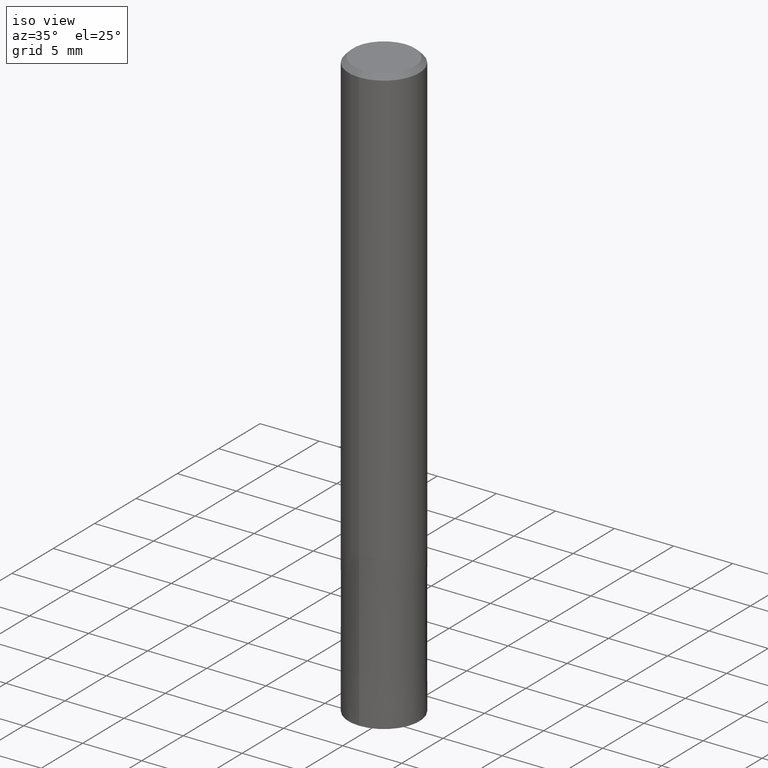
[diagram: clean part render]
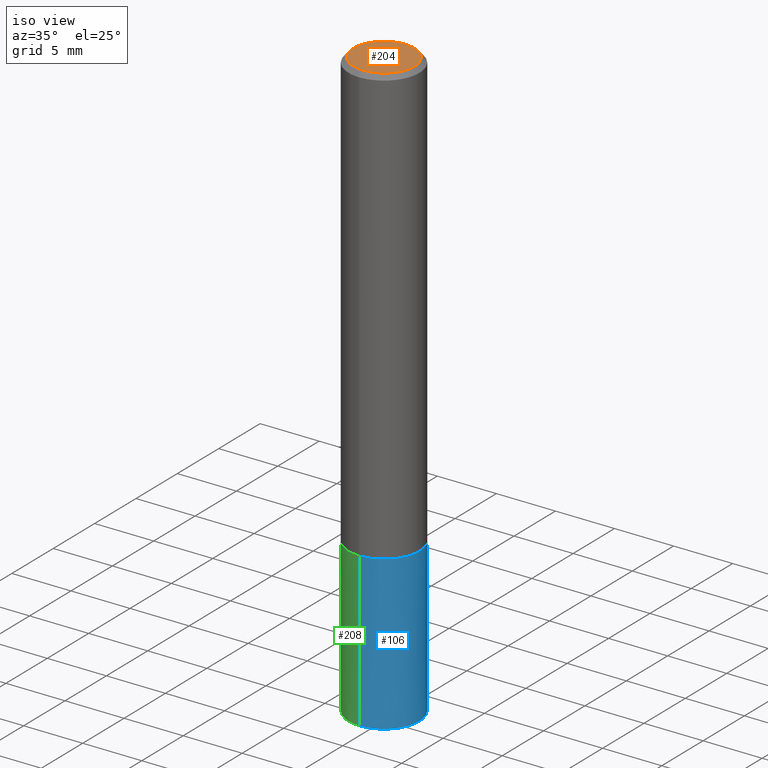
[diagram: same view with three faces highlighted in distinct colors, each labeled with its STEP entity id]
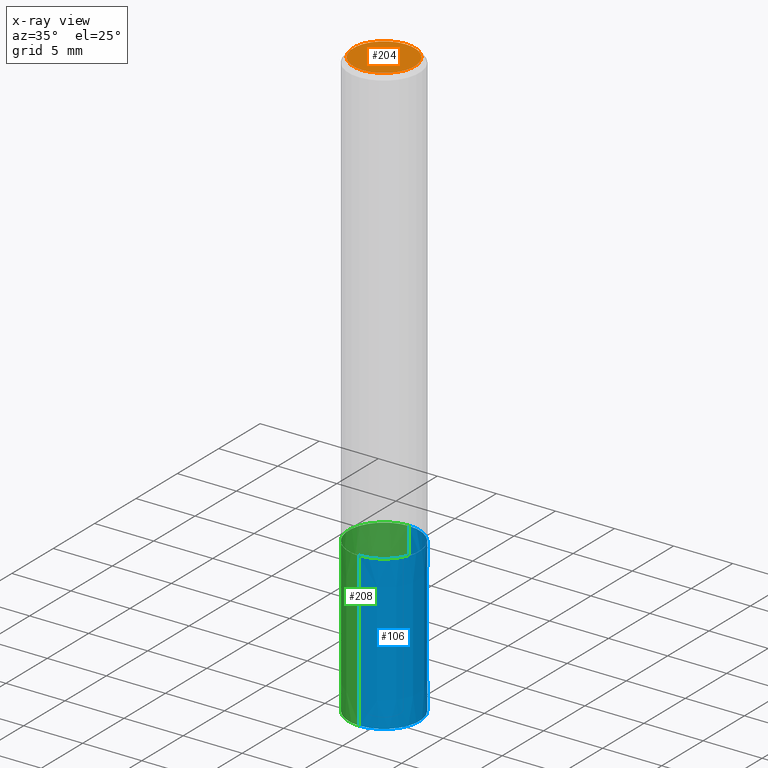
[diagram: x-ray of the same camera — body ghosted, the three highlighted faces saturated]
A machine part, iso view with three faces highlighted in distinct colors.
The next image is the same camera in x-ray (body ghosted, the three faces saturated) — at least one of them is partly hidden behind the body in this view.
Their STEP definitions:

[orange] entity #204 — the highlighted planar face has unit normal (-0, 0, 1).
#98=EDGE_CURVE('',#114,#130,#243,.T.);
#114=VERTEX_POINT('',#263);
#130=VERTEX_POINT('',#279);
#164=EDGE_CURVE('',#130,#114,#317,.T.);
#204=ADVANCED_FACE('',(#363),#364,.T.);
#243=CIRCLE('',#399,2.6);
#263=CARTESIAN_POINT('',(3.18397651993818E-016,-2.6,0.0));
#279=CARTESIAN_POINT('',(0.0,2.6,0.0));
#317=CIRCLE('',#493,2.6);
#363=FACE_OUTER_BOUND('',#549,.T.);
#364=PLANE('',#550);
#399=AXIS2_PLACEMENT_3D('',#576,#577,#578);
#493=AXIS2_PLACEMENT_3D('',#658,#659,#660);
#549=EDGE_LOOP('',(#719,#720));
#550=AXIS2_PLACEMENT_3D('',#721,#722,#723);
#576=CARTESIAN_POINT('',(0.0,0.0,0.0));
#577=DIRECTION('',(0.0,0.0,-1.0));
#578=DIRECTION('',(0.0,1.0,0.0));
#658=CARTESIAN_POINT('',(0.0,0.0,0.0));
#659=DIRECTION('',(0.0,0.0,-1.0));
#660=DIRECTION('',(0.0,1.0,0.0));
#719=ORIENTED_EDGE('',*,*,#164,.F.);
#720=ORIENTED_EDGE('',*,*,#98,.F.);
#721=CARTESIAN_POINT('',(0.0,1.3,0.0));
#722=DIRECTION('',(-0.0,0.0,1.0));
#723=DIRECTION('',(0.0,-1.0,0.0));

[blue] entity #106 — the highlighted conical surface has half-angle 0 deg.
#106=ADVANCED_FACE('',(#253),#254,.T.);
#116=EDGE_CURVE('',#194,#182,#265,.T.);
#124=VERTEX_POINT('',#273);
#126=EDGE_CURVE('',#140,#182,#275,.T.);
#140=VERTEX_POINT('',#291);
#182=VERTEX_POINT('',#338);
#190=EDGE_CURVE('',#194,#124,#348,.T.);
#194=VERTEX_POINT('',#353);
#220=EDGE_CURVE('',#124,#140,#383,.T.);
#253=FACE_OUTER_BOUND('',#409,.T.);
#254=CONICAL_SURFACE('',#410,2.99995,7.6923076921722E-006);
#265=CIRCLE('',#424,2.9999);
#273=CARTESIAN_POINT('',(0.0,3.0,-50.0));
#275=LINE('',#438,#439);
#291=CARTESIAN_POINT('',(3.67381906146713E-016,-3.0,-50.0));
#338=CARTESIAN_POINT('',(3.67369660083175E-016,-2.9999,-37.0));
#348=LINE('',#530,#531);
#353=CARTESIAN_POINT('',(0.0,2.9999,-37.0));
#383=CIRCLE('',#574,3.0);
#409=EDGE_LOOP('',(#588,#589,#590,#591));
#410=AXIS2_PLACEMENT_3D('',#592,#593,#594);
#424=AXIS2_PLACEMENT_3D('',#604,#605,#606);
#438=CARTESIAN_POINT('',(3.67375783114944E-016,-2.99995,-43.5));
#439=VECTOR('',#611,1.0);
#530=CARTESIAN_POINT('',(-3.67375783114944E-016,2.99995,-43.5));
#531=VECTOR('',#701,1.0);
#574=AXIS2_PLACEMENT_3D('',#755,#756,#757);
#588=ORIENTED_EDGE('',*,*,#190,.F.);
#589=ORIENTED_EDGE('',*,*,#116,.T.);
#590=ORIENTED_EDGE('',*,*,#126,.F.);
#591=ORIENTED_EDGE('',*,*,#220,.F.);
#592=CARTESIAN_POINT('',(0.0,0.0,-43.5));
#593=DIRECTION('',(0.0,-0.0,-1.0));
#594=DIRECTION('',(0.0,1.0,0.0));
#604=CARTESIAN_POINT('',(0.0,0.0,-37.0));
#605=DIRECTION('',(0.0,0.0,-1.0));
#606=DIRECTION('',(0.0,1.0,0.0));
#611=DIRECTION('',(-9.42004887529793E-022,7.69230769209634E-006,0.999999999970414));
#701=DIRECTION('',(-9.42004887529793E-022,7.69230769209634E-006,-0.999999999970414));
#755=CARTESIAN_POINT('',(0.0,0.0,-50.0));
#756=DIRECTION('',(0.0,0.0,-1.0));
#757=DIRECTION('',(0.0,1.0,0.0));

[green] entity #208 — the highlighted conical surface has half-angle 0 deg.
#124=VERTEX_POINT('',#273);
#126=EDGE_CURVE('',#140,#182,#275,.T.);
#140=VERTEX_POINT('',#291);
#162=EDGE_CURVE('',#140,#124,#315,.T.);
#178=EDGE_CURVE('',#182,#194,#333,.T.);
#182=VERTEX_POINT('',#338);
#190=EDGE_CURVE('',#194,#124,#348,.T.);
#194=VERTEX_POINT('',#353);
#208=ADVANCED_FACE('',(#368),#369,.T.);
#273=CARTESIAN_POINT('',(0.0,3.0,-50.0));
#275=LINE('',#438,#439);
#291=CARTESIAN_POINT('',(3.67381906146713E-016,-3.0,-50.0));
#315=CIRCLE('',#490,3.0);
#333=CIRCLE('',#512,2.9999);
#338=CARTESIAN_POINT('',(3.67369660083175E-016,-2.9999,-37.0));
#348=LINE('',#530,#531);
#353=CARTESIAN_POINT('',(0.0,2.9999,-37.0));
#368=FACE_OUTER_BOUND('',#556,.T.);
#369=CONICAL_SURFACE('',#557,2.99995,7.6923076921722E-006);
#438=CARTESIAN_POINT('',(3.67375783114944E-016,-2.99995,-43.5));
#439=VECTOR('',#611,1.0);
#490=AXIS2_PLACEMENT_3D('',#655,#656,#657);
#512=AXIS2_PLACEMENT_3D('',#676,#677,#678);
#530=CARTESIAN_POINT('',(-3.67375783114944E-016,2.99995,-43.5));
#531=VECTOR('',#701,1.0);
#556=EDGE_LOOP('',(#726,#727,#728,#729));
#557=AXIS2_PLACEMENT_3D('',#730,#731,#732);
#611=DIRECTION('',(-9.42004887529793E-022,7.69230769209634E-006,0.999999999970414));
#655=CARTESIAN_POINT('',(0.0,0.0,-50.0));
#656=DIRECTION('',(0.0,0.0,-1.0));
#657=DIRECTION('',(0.0,1.0,0.0));
#676=CARTESIAN_POINT('',(0.0,0.0,-37.0));
#677=DIRECTION('',(0.0,0.0,-1.0));
#678=DIRECTION('',(0.0,1.0,0.0));
#701=DIRECTION('',(-9.42004887529793E-022,7.69230769209634E-006,-0.999999999970414));
#726=ORIENTED_EDGE('',*,*,#190,.T.);
#727=ORIENTED_EDGE('',*,*,#162,.F.);
#728=ORIENTED_EDGE('',*,*,#126,.T.);
#729=ORIENTED_EDGE('',*,*,#178,.T.);
#730=CARTESIAN_POINT('',(0.0,0.0,-43.5));
#731=DIRECTION('',(0.0,-0.0,-1.0));
#732=DIRECTION('',(0.0,1.0,0.0));